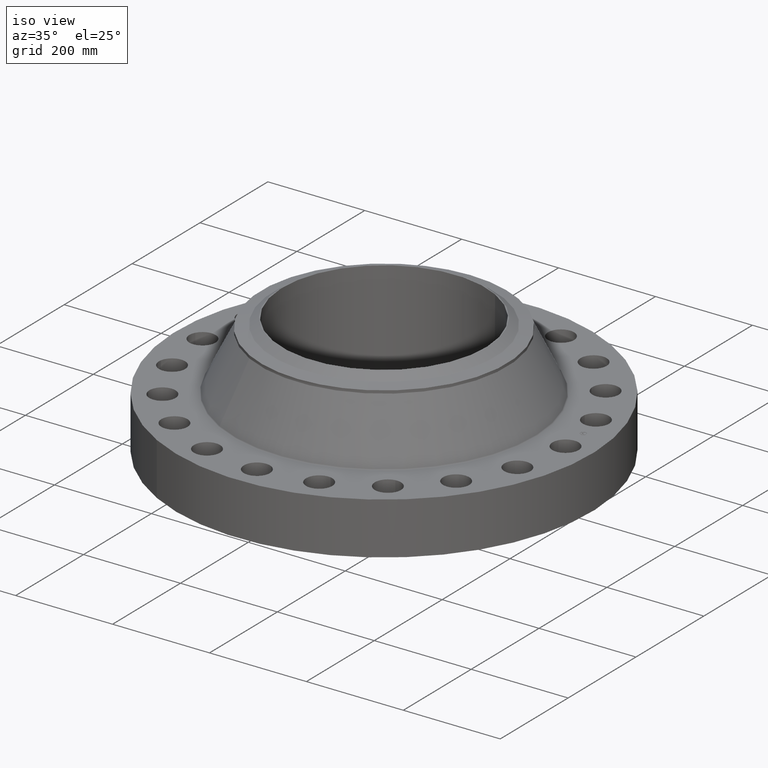
[diagram: clean part render]
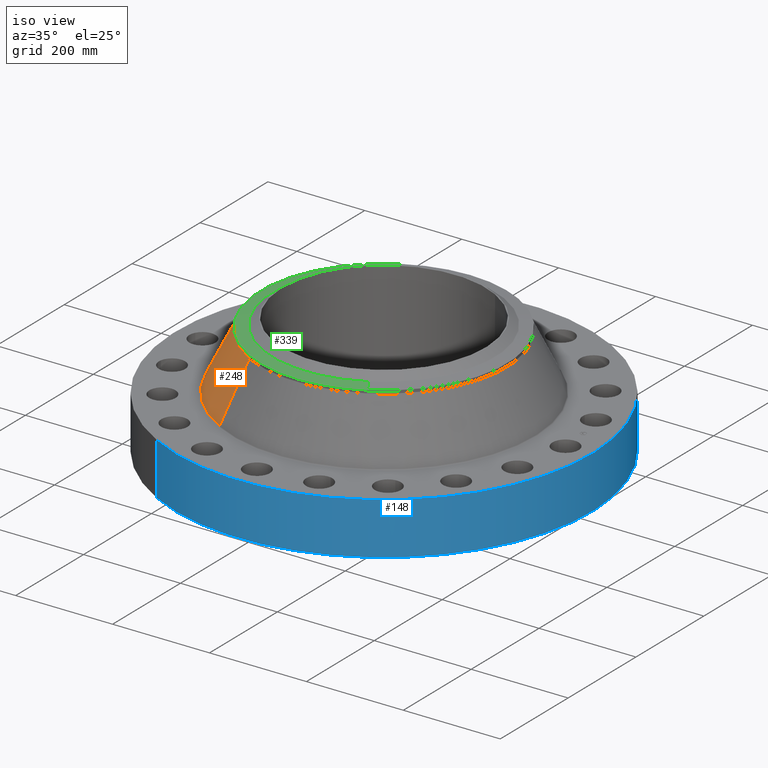
[diagram: same view with three faces highlighted in distinct colors, each labeled with its STEP entity id]
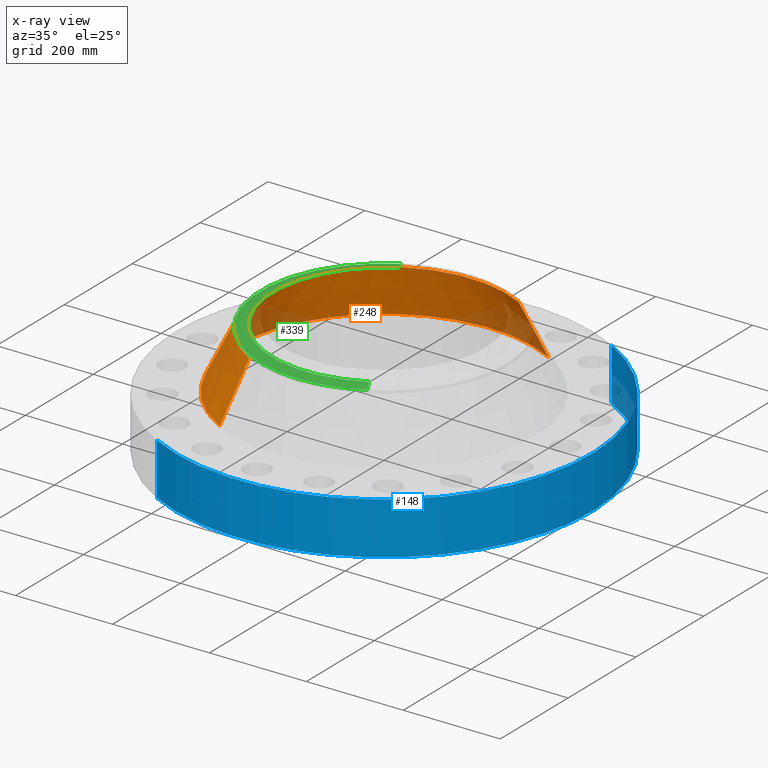
[diagram: x-ray of the same camera — body ghosted, the three highlighted faces saturated]
A machine part, iso view with three faces highlighted in distinct colors.
The next image is the same camera in x-ray (body ghosted, the three faces saturated) — at least one of them is partly hidden behind the body in this view.
Their STEP definitions:

[orange] entity #248 — the highlighted conical surface has half-angle 26.195 deg.
#196=AXIS2_PLACEMENT_3D('Circle Axis2P3D',#194,#195,$) ;
#209=AXIS2_PLACEMENT_3D('Cone Axis2P3D',#206,#207,#208) ;
#239=AXIS2_PLACEMENT_3D('Circle Axis2P3D',#237,#238,$) ;
#167=CARTESIAN_POINT('Vertex',(5.85715372966,10.7214479863,4.31702803078)) ;
#174=CARTESIAN_POINT('Vertex',(-5.85715372966,-10.7214479863,4.31702803078)) ;
#194=CARTESIAN_POINT('Axis2P3D Location',(0.,0.,4.31702803078)) ;
#206=CARTESIAN_POINT('Axis2P3D Location',(0.,0.,8.82354013962)) ;
#211=CARTESIAN_POINT('Line Origine',(5.32570455786,9.74863680263,6.5702840852)) ;
#215=CARTESIAN_POINT('Vertex',(4.79425538606,8.77582561894,8.82354013962)) ;
#222=CARTESIAN_POINT('Vertex',(-4.79425538606,-8.77582561894,8.82354013962)) ;
#225=CARTESIAN_POINT('Line Origine',(-5.32570455786,-9.74863680263,6.5702840852)) ;
#237=CARTESIAN_POINT('Axis2P3D Location',(0.,0.,8.82354013962)) ;
#195=DIRECTION('Axis2P3D Direction',(0.,0.,-0.0393700787402)) ;
#207=DIRECTION('Axis2P3D Direction',(0.,0.,-0.0393700787402)) ;
#208=DIRECTION('Axis2P3D XDirection',(-0.0188750212049,-0.0345504945626,0.)) ;
#212=DIRECTION('Vector Direction',(0.00833205868795,0.0152517311249,-0.0353265423686)) ;
#226=DIRECTION('Vector Direction',(-0.00833205868795,-0.0152517311249,-0.0353265423686)) ;
#238=DIRECTION('Axis2P3D Direction',(0.,0.,-0.0393700787402)) ;
#213=VECTOR('Line Direction',#212,0.0393700787402) ;
#227=VECTOR('Line Direction',#226,0.0393700787402) ;
#243=ORIENTED_EDGE('',*,*,#198,.F.) ;
#244=ORIENTED_EDGE('',*,*,#229,.T.) ;
#245=ORIENTED_EDGE('',*,*,#241,.T.) ;
#246=ORIENTED_EDGE('',*,*,#217,.F.) ;
#248=ADVANCED_FACE('PartBody',(#247),#210,.T.) ;
#197=CIRCLE('generated circle',#196,12.2170248726) ;
#240=CIRCLE('generated circle',#239,10.) ;
#210=CONICAL_SURFACE('Cone',#209,10.,0.457195156514) ;
#198=EDGE_CURVE('',#175,#168,#197,.T.) ;
#217=EDGE_CURVE('',#168,#216,#214,.F.) ;
#229=EDGE_CURVE('',#175,#223,#228,.F.) ;
#241=EDGE_CURVE('',#223,#216,#240,.T.) ;
#242=EDGE_LOOP('',(#243,#244,#245,#246)) ;
#247=FACE_OUTER_BOUND('',#242,.T.) ;
#214=LINE('Line',#211,#213) ;
#228=LINE('Line',#225,#227) ;
#168=VERTEX_POINT('',#167) ;
#175=VERTEX_POINT('',#174) ;
#216=VERTEX_POINT('',#215) ;
#223=VERTEX_POINT('',#222) ;

[blue] entity #148 — the highlighted cylindrical surface (partial cylindrical patch) has radius 428.625 mm, axis along (0, 0, -1).
#95=AXIS2_PLACEMENT_3D('Cylinder Axis2P3D',#92,#93,#94) ;
#134=AXIS2_PLACEMENT_3D('Circle Axis2P3D',#132,#133,$) ;
#139=AXIS2_PLACEMENT_3D('Circle Axis2P3D',#137,#138,$) ;
#92=CARTESIAN_POINT('Axis2P3D Location',(0.,0.,4.87500000002)) ;
#101=CARTESIAN_POINT('Vertex',(-8.09030596398,-14.809205732,1.67844740731E-015)) ;
#103=CARTESIAN_POINT('Vertex',(8.09030596398,14.809205732,1.67844740731E-015)) ;
#106=CARTESIAN_POINT('Line Origine',(-8.09030596398,-14.809205732,2.12500000001)) ;
#110=CARTESIAN_POINT('Vertex',(-8.09030596398,-14.809205732,4.25000000002)) ;
#117=CARTESIAN_POINT('Vertex',(8.09030596398,14.809205732,4.25000000002)) ;
#120=CARTESIAN_POINT('Line Origine',(8.09030596398,14.809205732,2.12500000001)) ;
#132=CARTESIAN_POINT('Axis2P3D Location',(0.,0.,1.67844740731E-015)) ;
#137=CARTESIAN_POINT('Axis2P3D Location',(0.,0.,4.25000000002)) ;
#93=DIRECTION('Axis2P3D Direction',(0.,0.,-0.0393700787402)) ;
#94=DIRECTION('Axis2P3D XDirection',(0.0188750212049,0.0345504945626,0.)) ;
#107=DIRECTION('Vector Direction',(0.,0.,-0.0393700787402)) ;
#121=DIRECTION('Vector Direction',(0.,0.,-0.0393700787402)) ;
#133=DIRECTION('Axis2P3D Direction',(0.,0.,-0.0393700787402)) ;
#138=DIRECTION('Axis2P3D Direction',(0.,0.,-0.0393700787402)) ;
#108=VECTOR('Line Direction',#107,0.0393700787402) ;
#122=VECTOR('Line Direction',#121,0.0393700787402) ;
#143=ORIENTED_EDGE('',*,*,#136,.F.) ;
#144=ORIENTED_EDGE('',*,*,#124,.T.) ;
#145=ORIENTED_EDGE('',*,*,#141,.T.) ;
#146=ORIENTED_EDGE('',*,*,#112,.F.) ;
#148=ADVANCED_FACE('PartBody',(#147),#96,.T.) ;
#135=CIRCLE('generated circle',#134,16.8750000001) ;
#140=CIRCLE('generated circle',#139,16.8750000001) ;
#96=CYLINDRICAL_SURFACE('generated cylinder',#95,16.8750000001) ;
#112=EDGE_CURVE('',#102,#111,#109,.F.) ;
#124=EDGE_CURVE('',#104,#118,#123,.F.) ;
#136=EDGE_CURVE('',#104,#102,#135,.T.) ;
#141=EDGE_CURVE('',#118,#111,#140,.T.) ;
#142=EDGE_LOOP('',(#143,#144,#145,#146)) ;
#147=FACE_OUTER_BOUND('',#142,.T.) ;
#109=LINE('Line',#106,#108) ;
#123=LINE('Line',#120,#122) ;
#102=VERTEX_POINT('',#101) ;
#104=VERTEX_POINT('',#103) ;
#111=VERTEX_POINT('',#110) ;
#118=VERTEX_POINT('',#117) ;

[green] entity #339 — the highlighted conical surface has half-angle 80 deg.
#277=AXIS2_PLACEMENT_3D('Circle Axis2P3D',#275,#276,$) ;
#290=AXIS2_PLACEMENT_3D('Circle Axis2P3D',#288,#289,$) ;
#311=AXIS2_PLACEMENT_3D('Cone Axis2P3D',#308,#309,#310) ;
#322=AXIS2_PLACEMENT_3D('Circle Axis2P3D',#320,#321,$) ;
#258=CARTESIAN_POINT('Vertex',(-4.79425538606,-8.77582561894,9.05976061206)) ;
#272=CARTESIAN_POINT('Vertex',(4.79425538606,-8.77582561894,9.05976061206)) ;
#275=CARTESIAN_POINT('Axis2P3D Location',(0.,0.,9.05976061206)) ;
#288=CARTESIAN_POINT('Axis2P3D Location',(0.,0.,9.05976061206)) ;
#292=CARTESIAN_POINT('Vertex',(-4.79425538606,8.77582561894,9.05976061206)) ;
#308=CARTESIAN_POINT('Axis2P3D Location',(0.,0.,9.23141601926)) ;
#313=CARTESIAN_POINT('Line Origine',(4.5608935213,-8.34865959079,9.14558831566)) ;
#317=CARTESIAN_POINT('Vertex',(4.32753165655,-7.92149356263,9.23141601926)) ;
#320=CARTESIAN_POINT('Axis2P3D Location',(0.,0.,9.23141601926)) ;
#324=CARTESIAN_POINT('Vertex',(-4.32753165655,7.92149356263,9.23141601926)) ;
#327=CARTESIAN_POINT('Line Origine',(-4.5608935213,8.34865959079,9.14558831566)) ;
#276=DIRECTION('Axis2P3D Direction',(0.,0.,-0.0393700787402)) ;
#289=DIRECTION('Axis2P3D Direction',(0.,0.,-0.0393700787402)) ;
#309=DIRECTION('Axis2P3D Direction',(-0.,-0.,-0.0393700787402)) ;
#310=DIRECTION('Axis2P3D XDirection',(-0.0188750212049,0.0345504945626,0.)) ;
#314=DIRECTION('Vector Direction',(0.0185882672208,-0.0340255949157,-0.00683654242783)) ;
#321=DIRECTION('Axis2P3D Direction',(0.,0.,-0.0393700787402)) ;
#328=DIRECTION('Vector Direction',(-0.0185882672208,0.0340255949157,-0.00683654242783)) ;
#315=VECTOR('Line Direction',#314,0.0393700787402) ;
#329=VECTOR('Line Direction',#328,0.0393700787402) ;
#333=ORIENTED_EDGE('',*,*,#319,.F.) ;
#334=ORIENTED_EDGE('',*,*,#326,.F.) ;
#335=ORIENTED_EDGE('',*,*,#331,.T.) ;
#336=ORIENTED_EDGE('',*,*,#294,.T.) ;
#337=ORIENTED_EDGE('',*,*,#279,.F.) ;
#339=ADVANCED_FACE('PartBody',(#338),#312,.T.) ;
#278=CIRCLE('generated circle',#277,10.) ;
#291=CIRCLE('generated circle',#290,10.) ;
#323=CIRCLE('generated circle',#322,9.02649380996) ;
#312=CONICAL_SURFACE('Cone',#311,9.02649380996,1.3962634016) ;
#279=EDGE_CURVE('',#273,#259,#278,.T.) ;
#294=EDGE_CURVE('',#293,#259,#291,.F.) ;
#319=EDGE_CURVE('',#318,#273,#316,.T.) ;
#326=EDGE_CURVE('',#325,#318,#323,.F.) ;
#331=EDGE_CURVE('',#325,#293,#330,.T.) ;
#332=EDGE_LOOP('',(#333,#334,#335,#336,#337)) ;
#338=FACE_OUTER_BOUND('',#332,.T.) ;
#316=LINE('Line',#313,#315) ;
#330=LINE('Line',#327,#329) ;
#259=VERTEX_POINT('',#258) ;
#273=VERTEX_POINT('',#272) ;
#293=VERTEX_POINT('',#292) ;
#318=VERTEX_POINT('',#317) ;
#325=VERTEX_POINT('',#324) ;